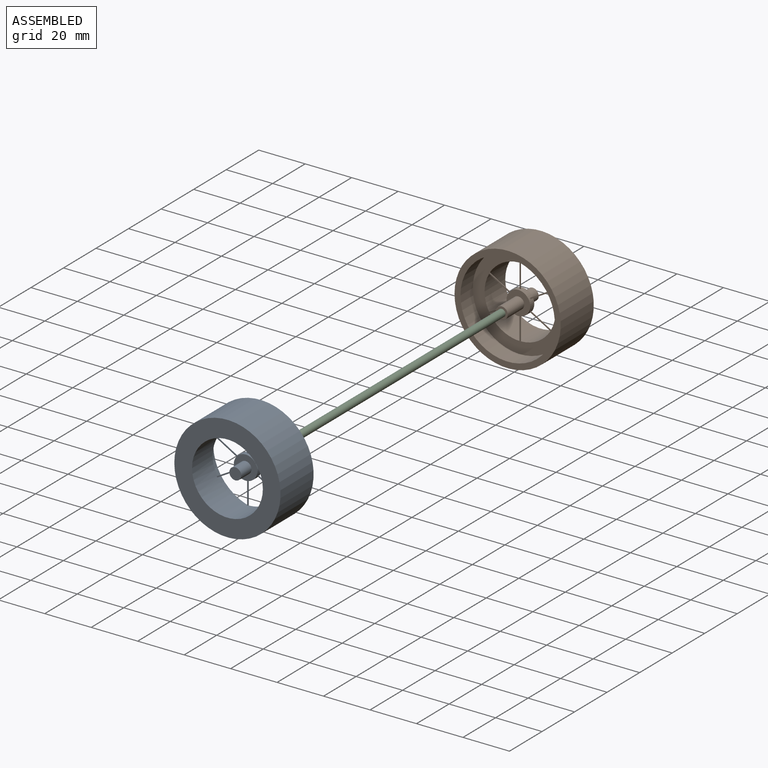
[diagram: assembled view]
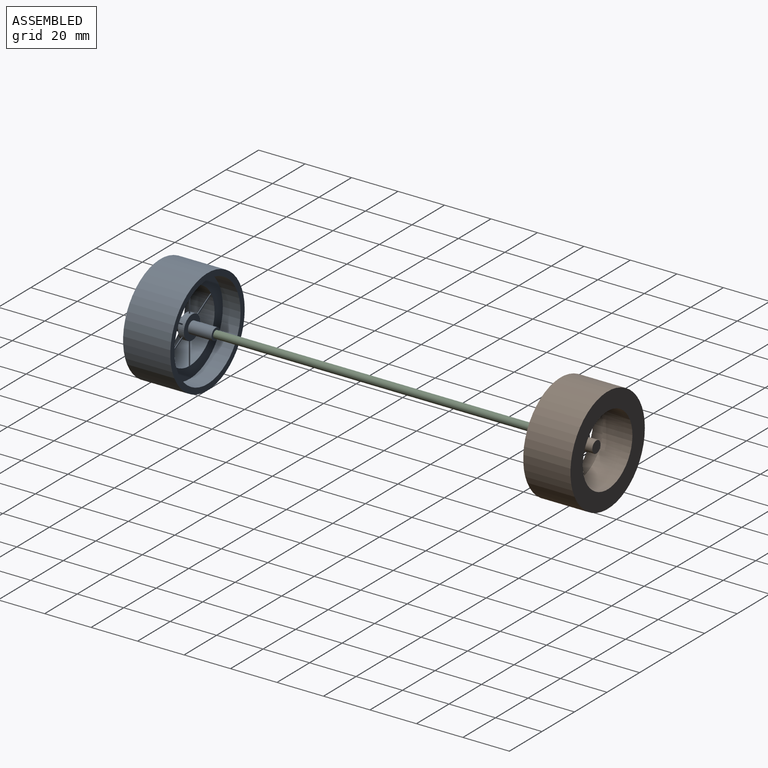
[diagram: assembled view, second angle]
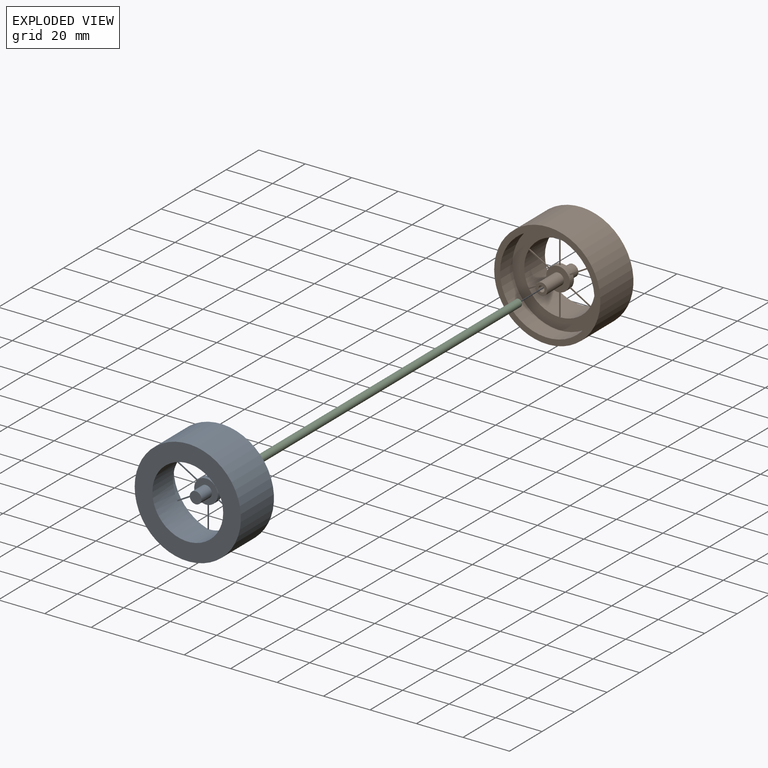
[diagram: exploded view]
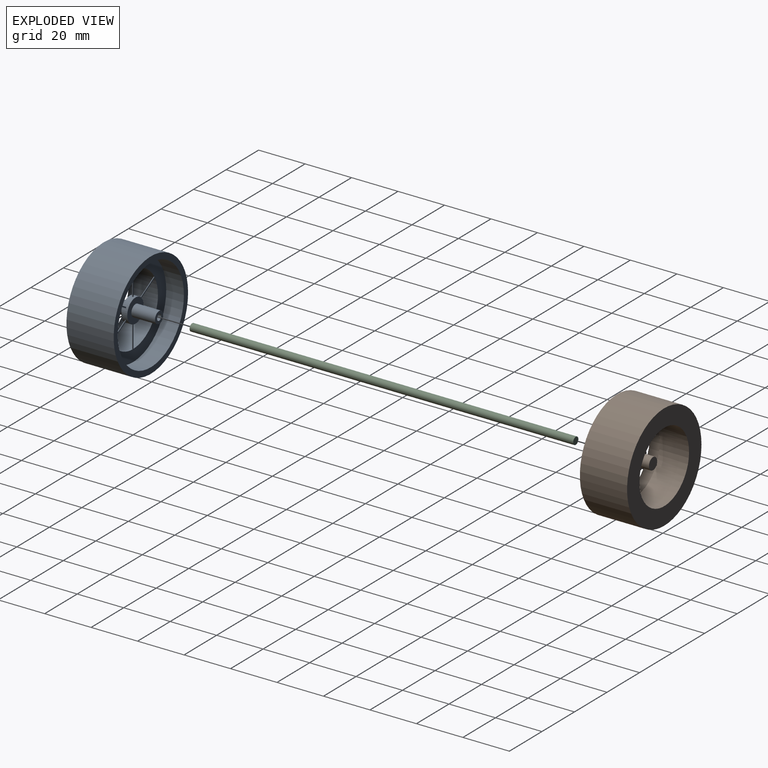
[diagram: exploded view, second angle]
ASSEMBLY  parts=3 mates=2
PART A: 33 faces, bbox 45.7x45.7x23.9 mm
  f0: plane 40.67x40.67mm, normal (0,0,-1), area 598.2mm2, adj f1,f11,f12,f14,f15,f17,f18,f20
  f1: cylinder r=5.08mm len=10.16mm, axis (0,0,-1), area 80.3mm2, adj f0,f2,f3,f10,f11,f12,f13,f14
  f2: plane 10.16x10.16mm, normal (0,0,1), area 60.8mm2, adj f1,f4
  f3: plane 10.16x10.16mm, normal (0,0,-1), area 60.8mm2, adj f1,f6
  f4: cylinder r=2.54mm len=6.35mm, axis (0,0,-1), area 101.3mm2, adj f2,f5
  f5: plane 5.08x5.08mm, normal (0,0,1), area 20.3mm2, adj f4
  f6: cylinder r=2.54mm len=10.16mm, axis (0,0,1), area 162.1mm2, adj f3,f7
  f7: plane 5.08x5.08mm, normal (0,0,-1), area 15.2mm2, adj f6,f8
  f8: cylinder r=1.27mm len=10.16mm, axis (0,0,-1), area 81.1mm2, adj f7,f9
  f9: plane 2.54x2.54mm, normal (0,0,-1), area 5.1mm2, adj f8
  f10: plane 10.18x0.52mm, normal (0,0,1), area 5.1mm2, adj f1,f11,f12,f29
  f11: plane 10.18x0.27mm, normal (-1,0,0), area 2.6mm2, adj f0,f1,f10,f29
  f12: plane 10.18x0.27mm, normal (1,0,0), area 2.6mm2, adj f0,f1,f10,f29
  f13: plane 9.07x5.53mm, normal (0,0,1), area 5.1mm2, adj f1,f14,f15,f29
  f14: plane 8.82x5.1mm, normal (-0.5,-0.87,0), area 2.6mm2, adj f0,f1,f13,f29
  f15: plane 8.81x5.09mm, normal (0.5,0.87,0), area 2.6mm2, adj f0,f1,f13,f29
  f16: plane 9.07x5.53mm, normal (0,0,1), area 5.1mm2, adj f1,f17,f18,f29
  f17: plane 8.82x5.1mm, normal (0.5,-0.87,0), area 2.6mm2, adj f0,f1,f16,f29
  f18: plane 8.81x5.09mm, normal (-0.5,0.87,0), area 2.6mm2, adj f0,f1,f16,f29
  f19: plane 10.18x0.52mm, normal (0,0,1), area 5.1mm2, adj f1,f20,f21,f29
  f20: plane 10.18x0.27mm, normal (1,0,0), area 2.6mm2, adj f0,f1,f19,f29
  f21: plane 10.18x0.27mm, normal (-1,0,0), area 2.6mm2, adj f0,f1,f19,f29
  f22: plane 9.07x5.53mm, normal (0,0,1), area 5.1mm2, adj f1,f23,f24,f29
  f23: plane 8.82x5.1mm, normal (0.5,0.87,0), area 2.6mm2, adj f0,f1,f22,f29
  f24: plane 8.81x5.09mm, normal (-0.5,-0.87,0), area 2.6mm2, adj f0,f1,f22,f29
  f25: plane 9.07x5.53mm, normal (0,0,1), area 5.1mm2, adj f1,f26,f27,f29
  f26: plane 8.82x5.1mm, normal (-0.5,0.87,0), area 2.6mm2, adj f0,f1,f25,f29
  f27: plane 8.81x5.09mm, normal (0.5,-0.87,0), area 2.6mm2, adj f0,f1,f25,f29
  f28: plane 45.72x45.72mm, normal (0,0,1), area 912.1mm2, adj f29,f30
  f29: cylinder r=15.24mm len=30.48mm, axis (0,0,-1), area 1215.5mm2, adj f0,f10,f11,f12,f13,f14,f15,f16
  f30: cylinder r=22.86mm len=45.72mm, axis (0,0,-1), area 2918.8mm2, adj f28,f31
  f31: plane 45.72x45.72mm, normal (0,0,-1), area 344.6mm2, adj f30,f32
  f32: cylinder r=20.32mm len=40.64mm, axis (0,0,-1), area 973mm2, adj f0,f31
PART B: same geometry as A
PART C: 3 faces, bbox 3.2x3.2x165.1 mm
  f0: cylinder r=1.59mm len=165.1mm, axis (0,0,-1), area 1646.8mm2, adj f1,f2
  f1: plane 3.18x3.18mm, normal (0,0,1), area 7.9mm2, adj f0
  f2: plane 3.18x3.18mm, normal (0,0,-1), area 7.9mm2, adj f0
PLACE A rot(axis=(1,0,0),90deg) t=(0,-83.82,0)mm
PLACE B rot(axis=(-1,0,0),90deg) t=(0,83.82,0)mm
PLACE C rot(axis=(0,-0.71,0.71),180deg) t=(0,82.55,0)mm
MATE revolute B.f1 <-> C.f0  axis (0,-1,0) through (0,82.55,0)mm
MATE revolute A.f1 <-> C.f0  axis (0,1,0) through (0,-82.55,0)mm
